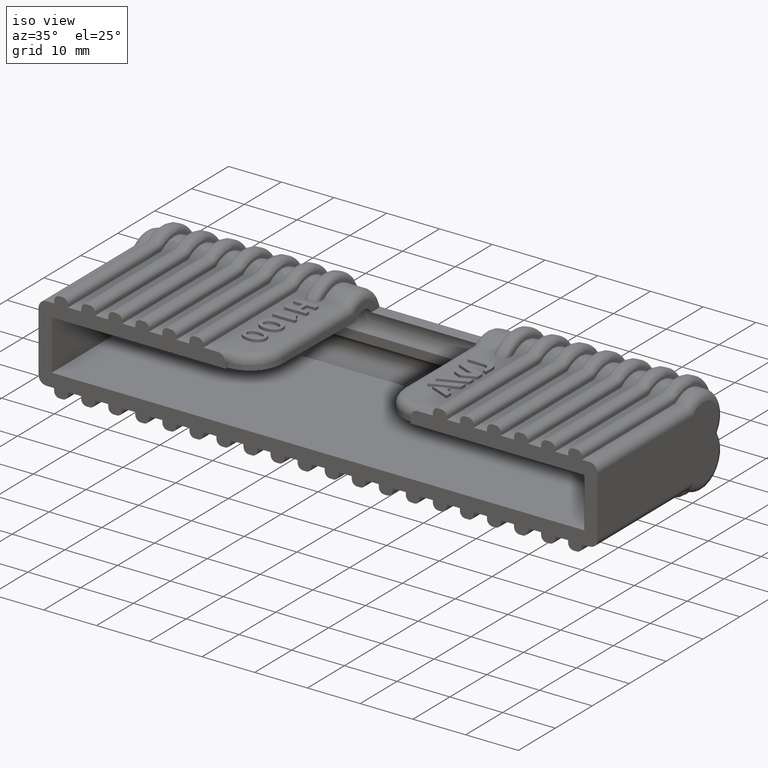
[diagram: clean part render]
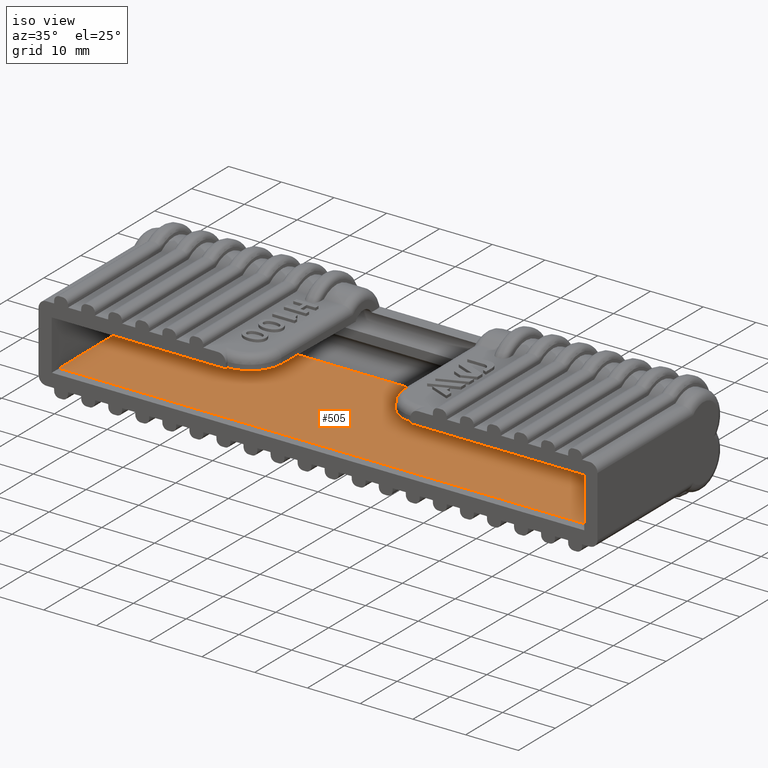
[diagram: same view with one face highlighted and labeled with its STEP entity id]
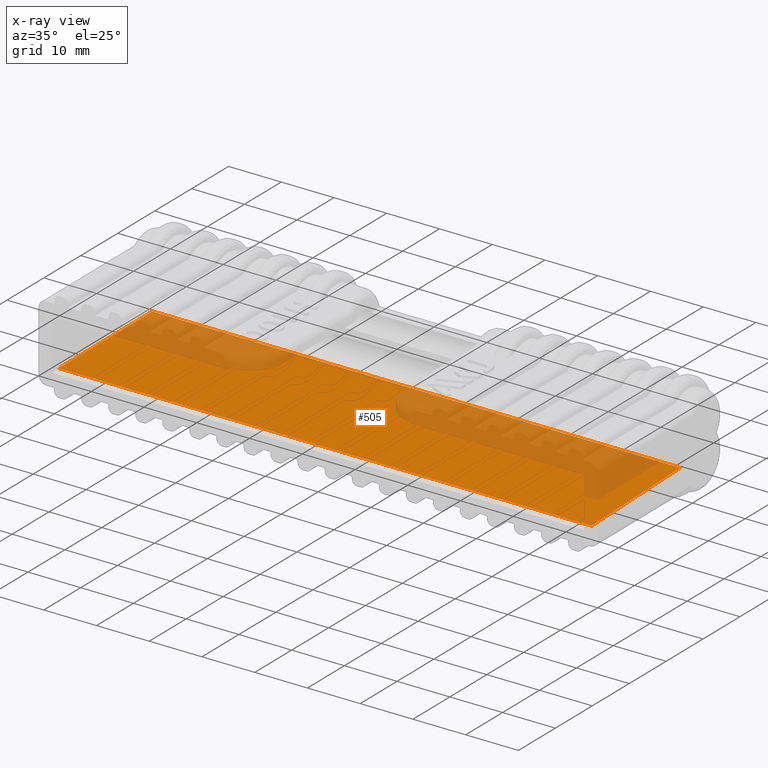
[diagram: x-ray of the same camera — body ghosted, the highlighted face saturated]
A machine part, iso view. The second image highlights one B-rep face of the part: STEP entity #505.
The next image is the same camera in x-ray: the body ghosted, the highlighted face saturated — about 32% of this face is hidden behind the body in this view.
In plain terms, the highlighted planar face has unit normal (-0, -0.0175, 0.9998).
Its self-contained STEP definition (entity closure, byte-faithful):
#505 = ADVANCED_FACE( '', ( #1496 ), #1497, .T. );
#1496 = FACE_OUTER_BOUND( '', #2606, .T. );
#1497 = PLANE( '', #2607 );
#2606 = EDGE_LOOP( '', ( #6585, #6586, #6587, #6588 ) );
#2607 = AXIS2_PLACEMENT_3D( '', #6589, #6590, #6591 );
#6585 = ORIENTED_EDGE( '', *, *, #8845, .F. );
#6586 = ORIENTED_EDGE( '', *, *, #8858, .F. );
#6587 = ORIENTED_EDGE( '', *, *, #8850, .T. );
#6588 = ORIENTED_EDGE( '', *, *, #8859, .F. );
#6589 = CARTESIAN_POINT( '', ( 50.0000000000000, 30.0000000000000, -4.24999999999999 ) );
#6590 = DIRECTION( '', ( -1.22441984034318E-016, -0.0174524064372833, 0.999847695156391 ) );
#6591 = DIRECTION( '', ( -2.13723278125879E-018, 0.999847695156391, 0.0174524064372833 ) );
#8845 = EDGE_CURVE( '', #10679, #11239, #11240, .T. );
#8850 = EDGE_CURVE( '', #11247, #11245, #11248, .T. );
#8858 = EDGE_CURVE( '', #11247, #10679, #11259, .F. );
#8859 = EDGE_CURVE( '', #11239, #11245, #11260, .F. );
#10679 = VERTEX_POINT( '', #15395 );
#11239 = VERTEX_POINT( '', #17048 );
#11240 = LINE( '', #17049, #17050 );
#11245 = VERTEX_POINT( '', #17057 );
#11247 = VERTEX_POINT( '', #17059 );
#11248 = LINE( '', #17060, #17061 );
#11259 = LINE( '', #17077, #17078 );
#11260 = LINE( '', #17079, #17080 );
#15395 = CARTESIAN_POINT( '', ( -50.4887418179901, 2.00000000000000, -4.73874181799009 ) );
#17048 = CARTESIAN_POINT( '', ( -50.0591453443919, 26.6115654891505, -4.30914534439190 ) );
#17049 = CARTESIAN_POINT( '', ( -49.9695506254229, 31.7444435012012, -4.21955062542293 ) );
#17050 = VECTOR( '', #19022, 1000.00000000000 );
#17057 = CARTESIAN_POINT( '', ( 50.0591453443919, 26.6115654891505, -4.30914534439188 ) );
#17059 = CARTESIAN_POINT( '', ( 50.4887418179901, 1.99999999999999, -4.73874181799009 ) );
#17060 = CARTESIAN_POINT( '', ( 50.0000000000000, 30.0000000000000, -4.24999999999999 ) );
#17061 = VECTOR( '', #19031, 1000.00000000000 );
#17077 = CARTESIAN_POINT( '', ( 50.0000000000000, 2.00000000000000, -4.73874181799008 ) );
#17078 = VECTOR( '', #19043, 1000.00000000000 );
#17079 = CARTESIAN_POINT( '', ( 85.0000000000000, 26.6115654891505, -4.30914534439188 ) );
#17080 = VECTOR( '', #19044, 1000.00000000000 );
#19022 = DIRECTION( '', ( 0.0174497491606827, 0.999695459881887, 0.0174497491606825 ) );
#19031 = DIRECTION( '', ( -0.0174497491606827, 0.999695459881887, 0.0174497491606825 ) );
#19043 = DIRECTION( '', ( 1.00000000000000, 2.24949108273321E-032, 1.22460635382238E-016 ) );
#19044 = DIRECTION( '', ( -1.00000000000000, -3.31166777813623E-032, -1.80284751248131E-016 ) );